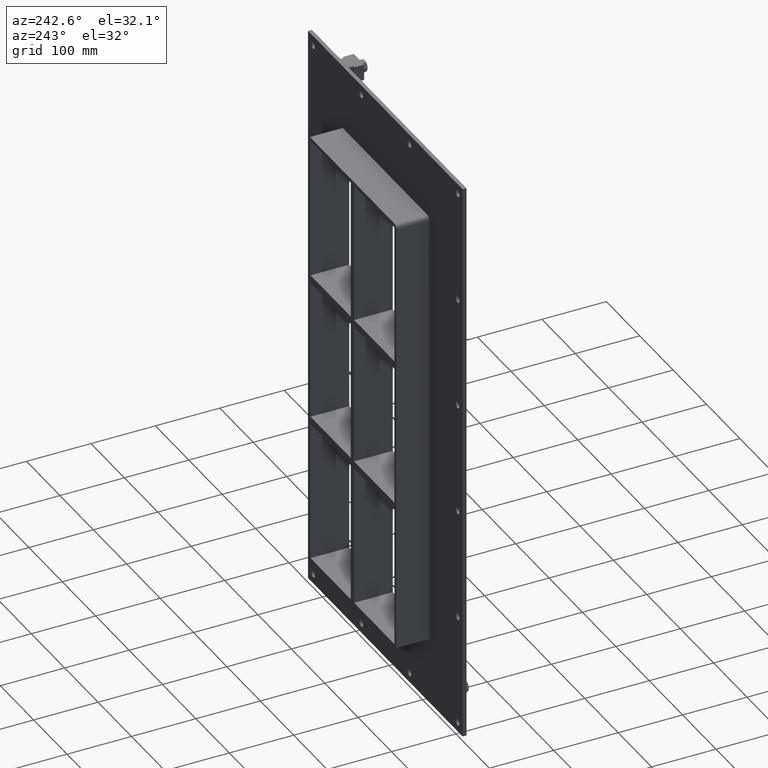
[diagram: clean part render]
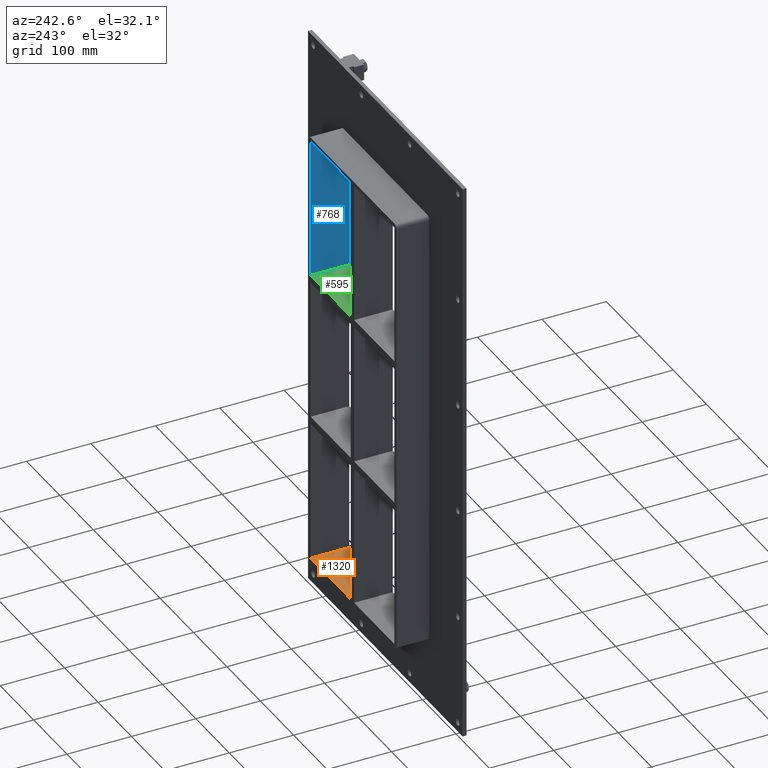
[diagram: same view with three faces highlighted in distinct colors, each labeled with its STEP entity id]
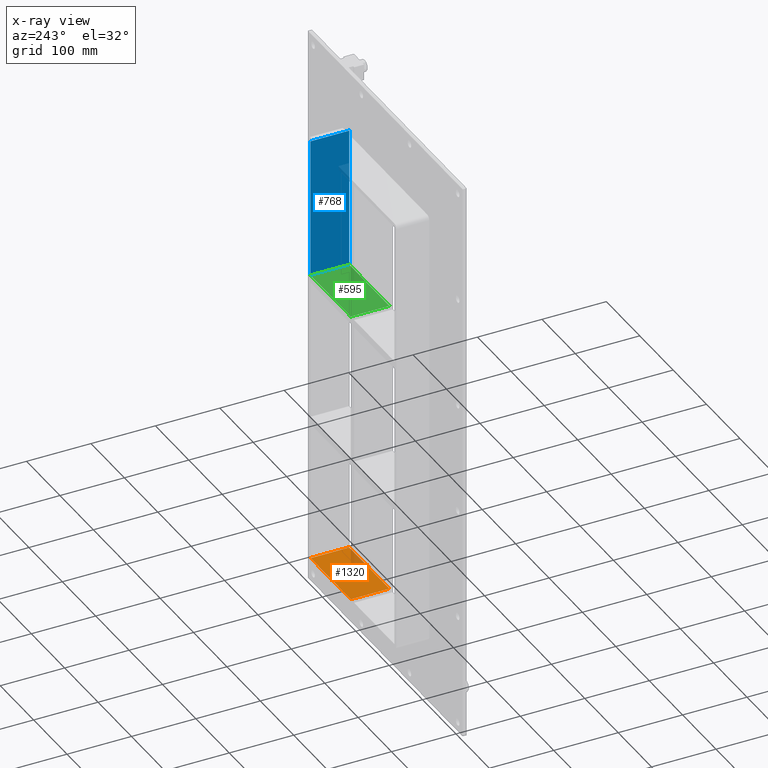
[diagram: x-ray of the same camera — body ghosted, the three highlighted faces saturated]
A machine part, auxiliary view with three faces highlighted in distinct colors.
The next image is the same camera in x-ray (body ghosted, the three faces saturated) — at least one of them is partly hidden behind the body in this view.
Their STEP definitions:

[orange] entity #1320 — the highlighted planar face has unit normal (0, 0, -1).
#1032=CARTESIAN_POINT('',(125.5,57.0,-339.00000000000011));
#1033=VERTEX_POINT('',#1032);
#1040=CARTESIAN_POINT('',(125.5,-3.0,-339.00000000000011));
#1041=VERTEX_POINT('',#1040);
#1042=CARTESIAN_POINT('',(125.5,56.999999999999993,-339.00000000000011));
#1043=DIRECTION('',(0.0,-1.0,0.0));
#1044=VECTOR('',#1043,59.999999999999993);
#1045=LINE('',#1042,#1044);
#1046=EDGE_CURVE('',#1033,#1041,#1045,.T.);
#1197=CARTESIAN_POINT('',(5.0,57.0,-338.99999999998192));
#1198=VERTEX_POINT('',#1197);
#1205=CARTESIAN_POINT('',(5.0,57.0,-339.00000000000011));
#1206=DIRECTION('',(1.0,0.0,0.0));
#1207=VECTOR('',#1206,120.5);
#1208=LINE('',#1205,#1207);
#1209=EDGE_CURVE('',#1198,#1033,#1208,.T.);
#1262=CARTESIAN_POINT('',(5.0,-3.0,-338.99999999998187));
#1263=VERTEX_POINT('',#1262);
#1270=CARTESIAN_POINT('',(5.0,57.000000000000007,-339.00000000000011));
#1271=DIRECTION('',(0.0,-1.0,0.0));
#1272=VECTOR('',#1271,60.000000000000007);
#1273=LINE('',#1270,#1272);
#1274=EDGE_CURVE('',#1198,#1263,#1273,.T.);
#1304=CARTESIAN_POINT('',(125.5,0.0,-339.00000000000011));
#1305=DIRECTION('',(0.0,0.0,-1.0));
#1306=DIRECTION('',(-1.0,0.0,0.0));
#1307=AXIS2_PLACEMENT_3D('',#1304,#1305,#1306);
#1308=PLANE('',#1307);
#1309=ORIENTED_EDGE('',*,*,#1274,.T.);
#1310=CARTESIAN_POINT('',(125.5,-3.0,-339.00000000000011));
#1311=DIRECTION('',(-1.0,0.0,0.0));
#1312=VECTOR('',#1311,120.5);
#1313=LINE('',#1310,#1312);
#1314=EDGE_CURVE('',#1041,#1263,#1313,.T.);
#1315=ORIENTED_EDGE('',*,*,#1314,.F.);
#1316=ORIENTED_EDGE('',*,*,#1046,.F.);
#1317=ORIENTED_EDGE('',*,*,#1209,.F.);
#1318=EDGE_LOOP('',(#1309,#1315,#1316,#1317));
#1319=FACE_OUTER_BOUND('',#1318,.T.);
#1320=ADVANCED_FACE('',(#1319),#1308,.F.);

[blue] entity #768 — the highlighted planar face has unit normal (1, 0, 0).
#571=CARTESIAN_POINT('',(125.49999999999919,-3.0,120.99999999999909));
#572=VERTEX_POINT('',#571);
#579=CARTESIAN_POINT('',(125.49999999999918,57.0,120.99999999999909));
#580=VERTEX_POINT('',#579);
#581=CARTESIAN_POINT('',(125.5,57.000000000000007,120.99999999999909));
#582=DIRECTION('',(0.0,-1.0,0.0));
#583=VECTOR('',#582,60.000000000000007);
#584=LINE('',#581,#583);
#585=EDGE_CURVE('',#580,#572,#584,.T.);
#738=CARTESIAN_POINT('',(125.5,0.0,339.00000000000006));
#739=DIRECTION('',(1.0,0.0,0.0));
#740=DIRECTION('',(0.0,0.0,-1.0));
#741=AXIS2_PLACEMENT_3D('',#738,#739,#740);
#742=PLANE('',#741);
#743=ORIENTED_EDGE('',*,*,#585,.T.);
#744=CARTESIAN_POINT('',(125.5,-3.0,339.0));
#745=VERTEX_POINT('',#744);
#746=CARTESIAN_POINT('',(125.5,-3.0,339.0));
#747=DIRECTION('',(0.0,0.0,-1.0));
#748=VECTOR('',#747,218.00000000000091);
#749=LINE('',#746,#748);
#750=EDGE_CURVE('',#745,#572,#749,.T.);
#751=ORIENTED_EDGE('',*,*,#750,.F.);
#752=CARTESIAN_POINT('',(125.5,57.0,339.0));
#753=VERTEX_POINT('',#752);
#754=CARTESIAN_POINT('',(125.5,-3.0,339.00000000000006));
#755=DIRECTION('',(0.0,1.0,0.0));
#756=VECTOR('',#755,60.0);
#757=LINE('',#754,#756);
#758=EDGE_CURVE('',#745,#753,#757,.T.);
#759=ORIENTED_EDGE('',*,*,#758,.T.);
#760=CARTESIAN_POINT('',(125.5,57.0,120.99999999999909));
#761=DIRECTION('',(0.0,0.0,1.0));
#762=VECTOR('',#761,218.00000000000091);
#763=LINE('',#760,#762);
#764=EDGE_CURVE('',#580,#753,#763,.T.);
#765=ORIENTED_EDGE('',*,*,#764,.F.);
#766=EDGE_LOOP('',(#743,#751,#759,#765));
#767=FACE_OUTER_BOUND('',#766,.T.);
#768=ADVANCED_FACE('',(#767),#742,.F.);

[green] entity #595 — the highlighted planar face has unit normal (0, 0, 1).
#556=CARTESIAN_POINT('',(-125.4999999999975,-3.0,120.99999999999909));
#557=DIRECTION('',(0.0,0.0,1.0));
#558=DIRECTION('',(1.0,0.0,0.0));
#559=AXIS2_PLACEMENT_3D('',#556,#557,#558);
#560=PLANE('',#559);
#561=CARTESIAN_POINT('',(5.0,-3.0,120.99999999999909));
#562=VERTEX_POINT('',#561);
#563=CARTESIAN_POINT('',(5.0,57.0,120.99999999999909));
#564=VERTEX_POINT('',#563);
#565=CARTESIAN_POINT('',(5.0,-3.0,120.99999999999909));
#566=DIRECTION('',(0.0,1.0,0.0));
#567=VECTOR('',#566,60.0);
#568=LINE('',#565,#567);
#569=EDGE_CURVE('',#562,#564,#568,.T.);
#570=ORIENTED_EDGE('',*,*,#569,.F.);
#571=CARTESIAN_POINT('',(125.49999999999919,-3.0,120.99999999999909));
#572=VERTEX_POINT('',#571);
#573=CARTESIAN_POINT('',(5.0,-3.0,120.99999999999909));
#574=DIRECTION('',(1.0,0.0,0.0));
#575=VECTOR('',#574,120.49999999999918);
#576=LINE('',#573,#575);
#577=EDGE_CURVE('',#562,#572,#576,.T.);
#578=ORIENTED_EDGE('',*,*,#577,.T.);
#579=CARTESIAN_POINT('',(125.49999999999918,57.0,120.99999999999909));
#580=VERTEX_POINT('',#579);
#581=CARTESIAN_POINT('',(125.5,57.000000000000007,120.99999999999909));
#582=DIRECTION('',(0.0,-1.0,0.0));
#583=VECTOR('',#582,60.000000000000007);
#584=LINE('',#581,#583);
#585=EDGE_CURVE('',#580,#572,#584,.T.);
#586=ORIENTED_EDGE('',*,*,#585,.F.);
#587=CARTESIAN_POINT('',(5.0,57.0,120.99999999999909));
#588=DIRECTION('',(1.0,0.0,0.0));
#589=VECTOR('',#588,120.49999999999918);
#590=LINE('',#587,#589);
#591=EDGE_CURVE('',#564,#580,#590,.T.);
#592=ORIENTED_EDGE('',*,*,#591,.F.);
#593=EDGE_LOOP('',(#570,#578,#586,#592));
#594=FACE_OUTER_BOUND('',#593,.T.);
#595=ADVANCED_FACE('',(#594),#560,.T.);